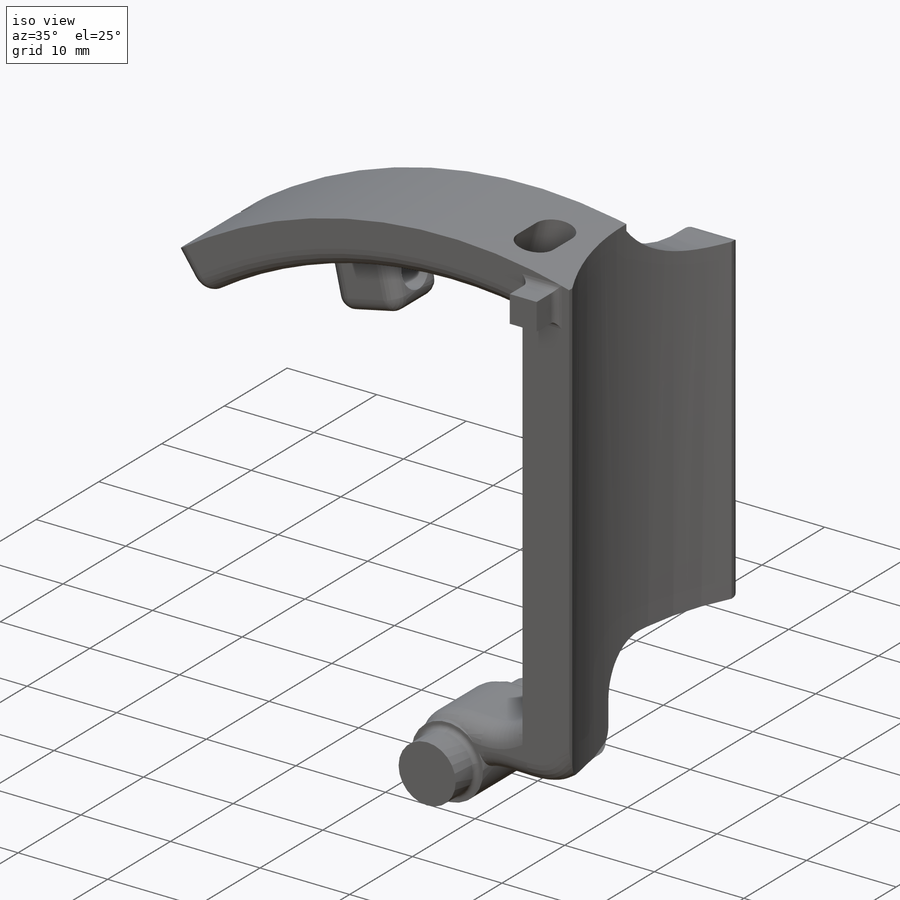
[diagram: iso view]
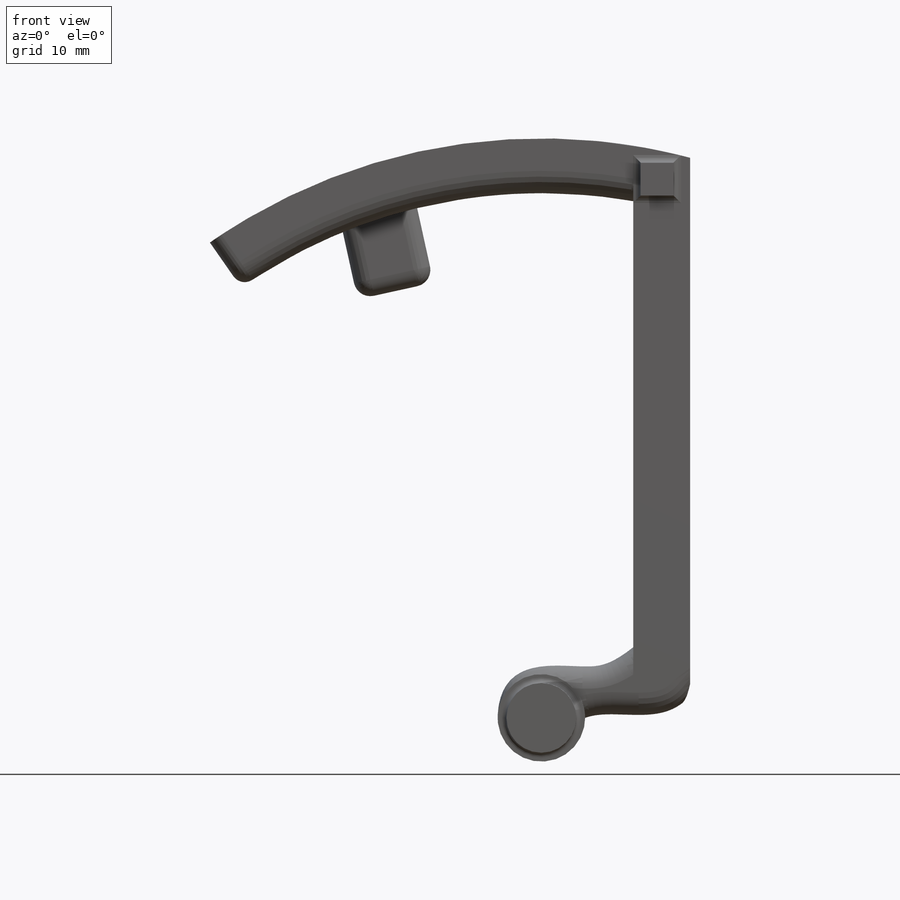
[diagram: front view]
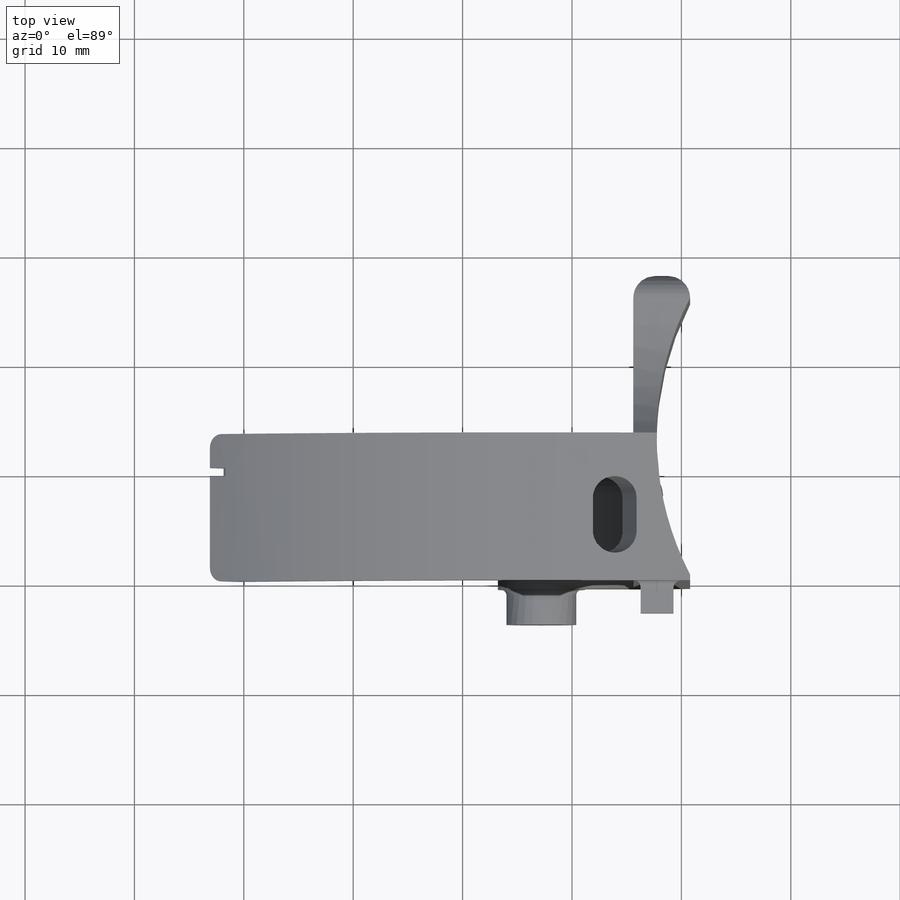
[diagram: top view]
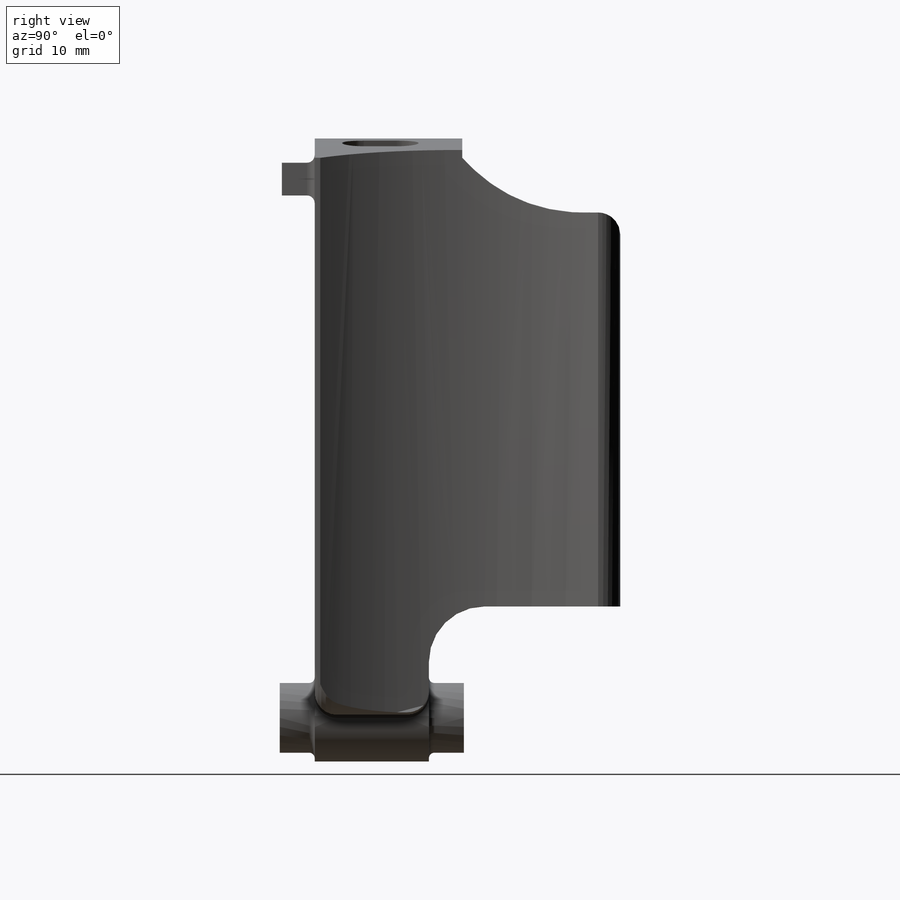
[diagram: right view]
SOLIDWORKS PART (.sldprt)
format: sldprt  version: not decoded by parser v0  size: 548,352 bytes
history: native  units: mm
features: sketch x13, fillet x8, extrude x7, cut_extrude x6, plane x3, material x1 (+12 scaffold rows collapsed)
feature tree (50):
  scaffold x12  (default folders/planes/origin — collapsed)
  material  "Material <not specified>"
  sketch  "Sketch1"  dims[c1.D1=0.02mm c1.D2=6.0mm c1.D3=~58.214792mm c1.D4=~109.00156mm c2.D2=~54.756794mm c2.D1=63.5mm c3.D2=8.0mm c3.D1=~6.03487mm c4.D2=~48.46591mm c4.D3=5.08mm c5.D2=~51.45278mm c5.D4=~49.41791mm c6.D2=~54.50078mm c6.D4=5.0mm]
  extrude  "Boss-Extrude1"  Depth=10.4394mm
  sketch  "Sketch5"
  extrude  "Boss-Extrude3"  Depth=3.048mm
  sketch  "Sketch7"  dims[D1=6.3754mm]
  extrude  "Boss-Extrude4"  Depth=3.2004mm
  sketch  "Sketch8"  dims[D1=6.3754mm D2=3.2004mm]
  extrude  "Boss-Extrude5"  Depth=3.2004mm
  plane  "Plane3"
  sketch  "Sketch9"  dims[D1=~44.37685mm D2=0.0mm]
  extrude  "Boss-Extrude6"  [1 undecoded]
  sketch  "Sketch10"  dims[D1=8.15mm]
  cut_extrude  "Cut-Extrude1"  Depth=8mm
  sketch  "Sketch11"  dims[D1=25.4mm D2=2.03mm]
  cut_extrude  "Cut-Extrude2"  Depth=3.048mm
  fillet  "Fillet1"  Radius=27.24mm
  fillet  "Fillet2"  Radius=0.5mm
  sketch  "Sketch12"  dims[D1=45.72mm D2=1.52mm D3=3.0mm D4=3.0mm]
  extrude  "Boss-Extrude7"  Depth=3mm
  fillet  "Fillet3"  Radius=0.7mm
  plane  "Plane1"
  plane  "Plane2"
  sketch  "Sketch14"  dims[D1=10.16mm D2=7.112mm D3=7.0mm]
  extrude  "Boss-Extrude8"  Depth=7mm
  sketch  "Sketch15"  dims[D1=3.5mm]
  cut_extrude  "Cut-Extrude3"  [1 undecoded]
  sketch  "Sketch16"  dims[D1=4.14mm]
  cut_extrude  "Cut-Extrude4"  Depth=5mm
  fillet  "Fillet4"  Radius=1.524mm
  fillet  "Fillet5"  Radius=2.032mm
  fillet  "Fillet6"  Radius=5.08mm
  sketch  "Sketch17"  dims[c1.D1=3.5mm c1.D2=0.5mm c1.D3=1.0mm c2.D2=0.762mm]
  cut_extrude  "Cut-Extrude5"  Depth=1.27mm
  fillet  "Fillet7"  Radius=0.508mm
  fillet  "Fillet8"  Radius=1.27mm
  sketch  "Sketch19"  dims[D1=2.0mm D2=4.5mm D3=7.0mm]
  cut_extrude  "Cut-Extrude6"  [1 undecoded]
decode coverage: 30 of 34 modeling features carry decoded parameters
note: ~ marks probable driven/reference dimensions
note: 3 parameter values undecoded
summary: no parameter record found for 3 features
note: suppression state not decoded; provenance and decode notes live in map.json
